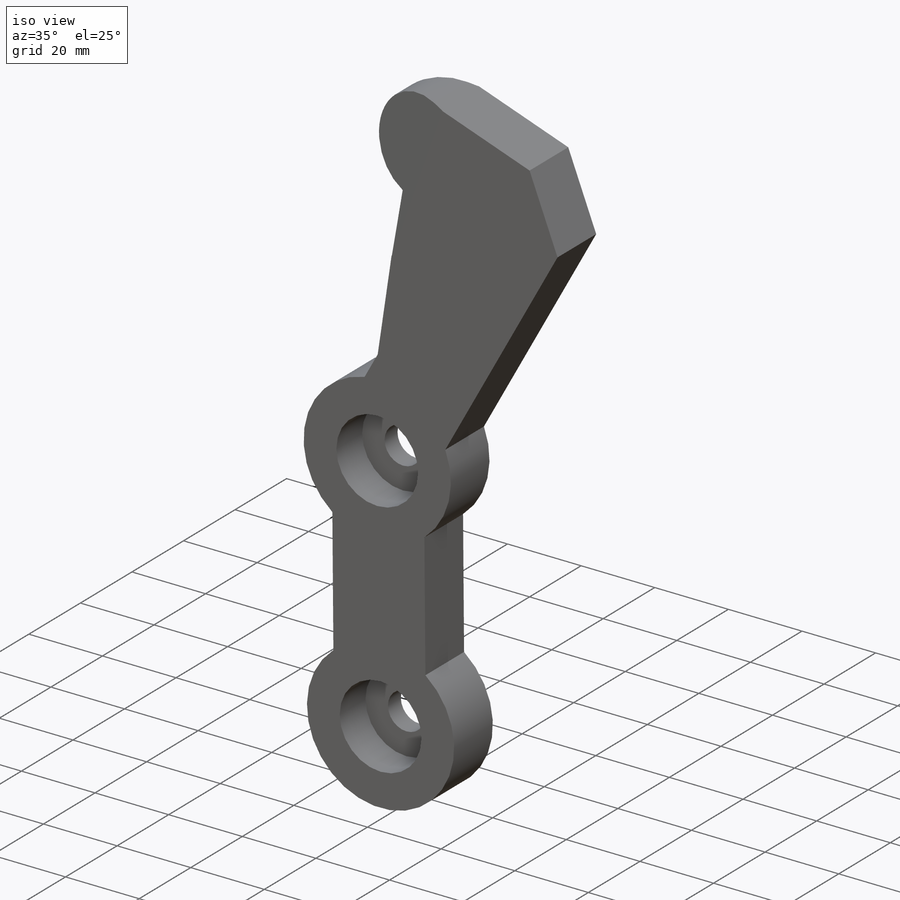
[diagram: iso view]
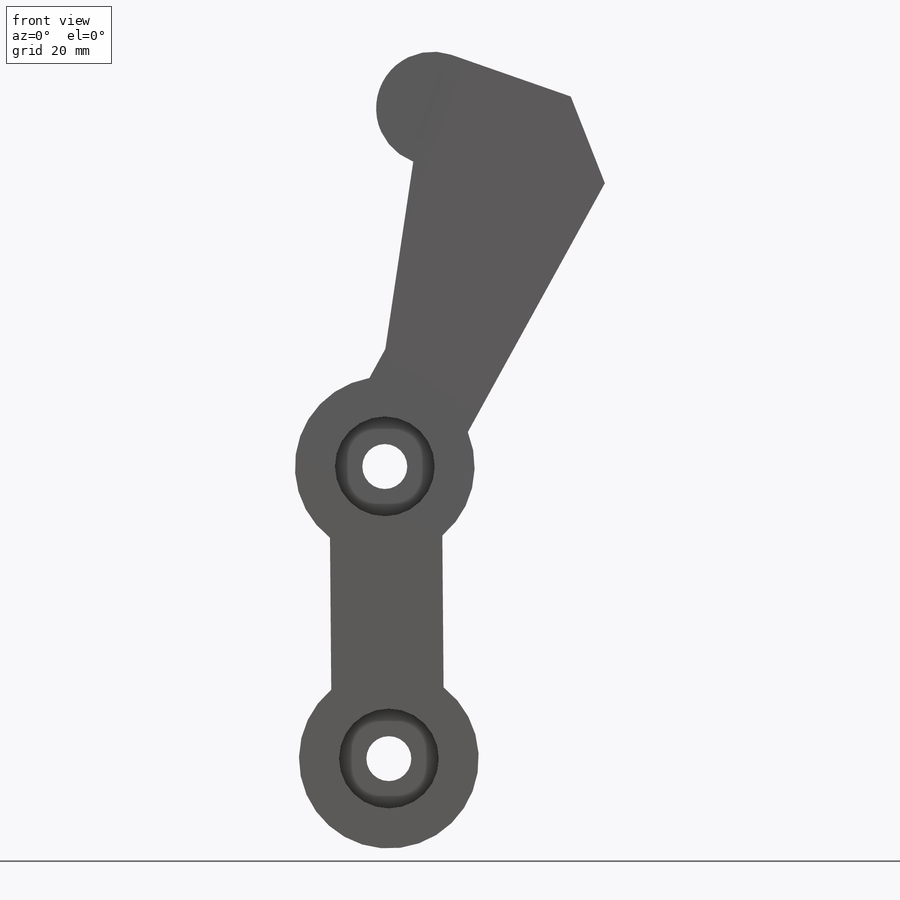
[diagram: front view]
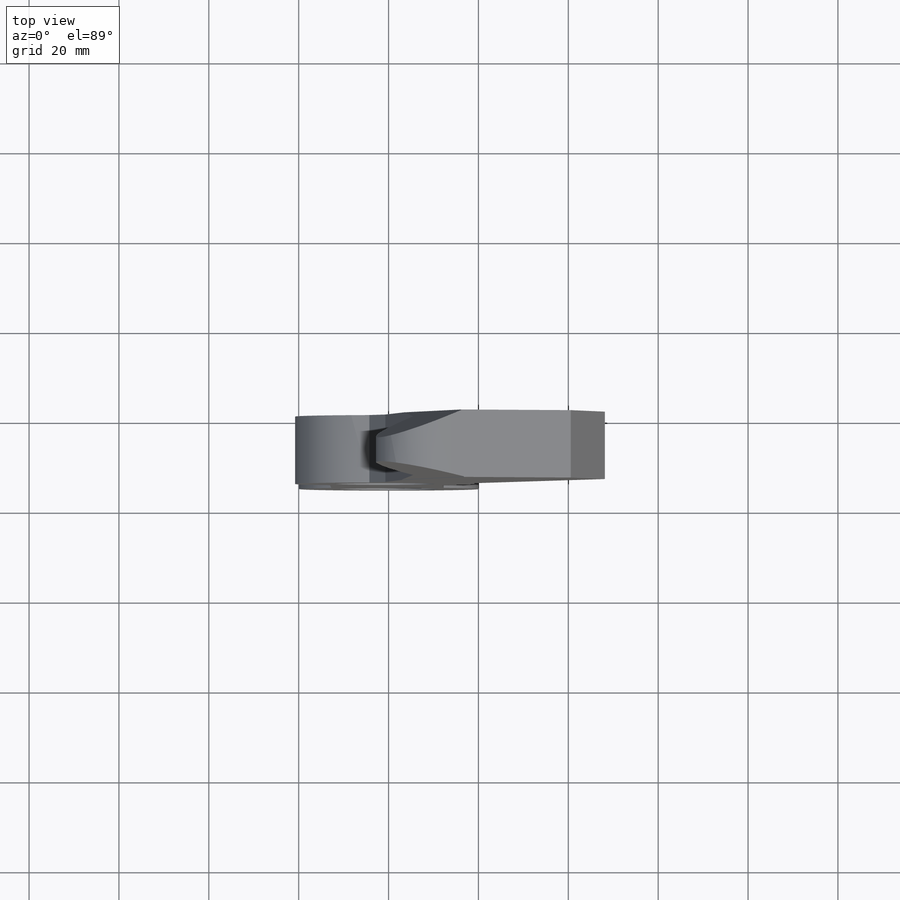
[diagram: top view]
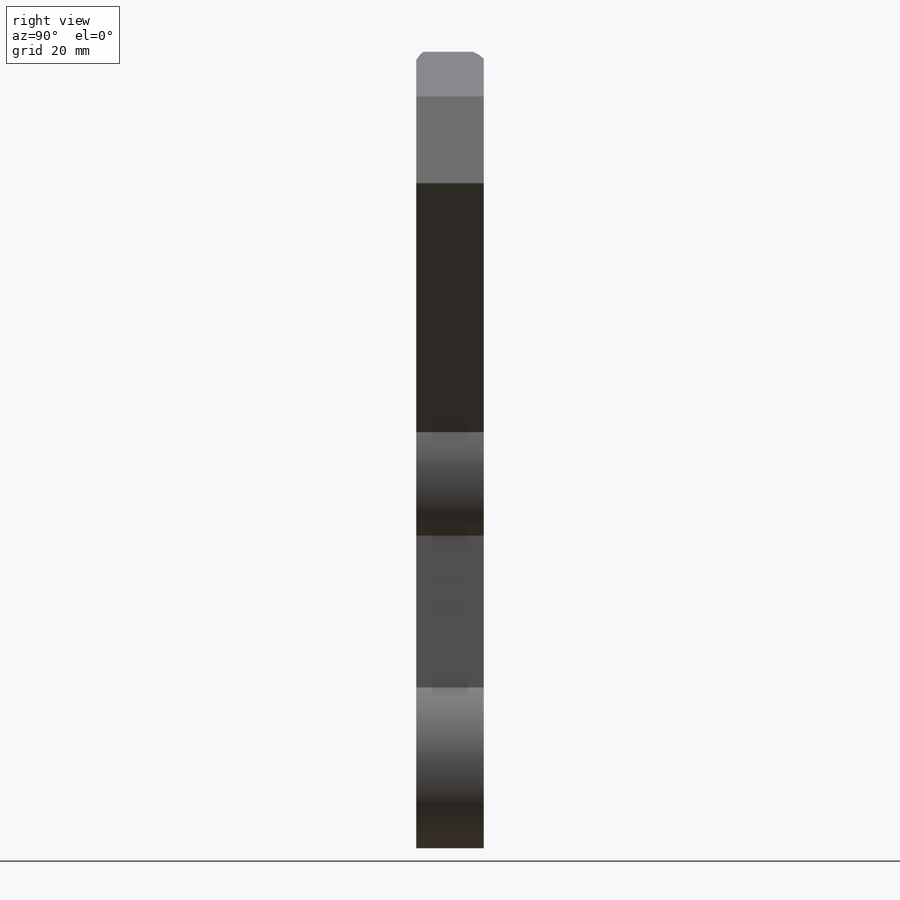
[diagram: right view]
SOLIDWORKS PART (.sldprt)
format: sldprt  version: not decoded by parser v0  size: 213,504 bytes
history: native  units: mm
features: sketch x4, cut_extrude x2, material x1, extrude x1 (+13 scaffold rows collapsed)
feature tree (21):
  scaffold x13  (default folders/planes/origin — collapsed)
  material  "Material <not specified>"
  sketch  "Sketch1"  dims[c1.D5=40.0mm c1.D6=40.0mm c1.D7=40.0mm c1.D11=40.0mm c1.D12=40.0mm c1.D1=25.0mm c1.D2=45.0mm c1.D3=0.0mm c1.D4=0.0mm c2.D3=0.0mm c2.D1=0.0mm c2.D2=~55.869121mm c3.D2=210.0deg c3.D4=~58.719229mm c4.D4=80.0deg c4.D5=30.0mm c4.D6=80.0mm c4.D7=65.0mm c4.D8=25.0mm c4.D9=25.0mm c4.D10=25.0mm c4.D13=0.0mm c4.D14=0.0mm c5.D9=12.0mm]
  extrude  "Boss-Extrude1"  Depth=15mm
  sketch  "Sketch2"  dims[D4=22.2mm D5=22.2mm D1=0.0mm D2=0.0mm D3=0.0mm]
  cut_extrude  "Cut-Extrude1"  Depth=10mm
  sketch  "Sketch3"  dims[D3=10.0mm D4=10.0mm D1=0.0mm D2=0.0mm]
  cut_extrude  "Cut-Extrude2"  Depth=10mm
  sketch  "Sketch6"  dims[D1=63.0mm D5=10.0mm D6=10.0mm D7=5.0mm]
decode coverage: 7 of 7 modeling features carry decoded parameters
note: ~ marks probable driven/reference dimensions
note: suppression state not decoded; provenance and decode notes live in map.json
